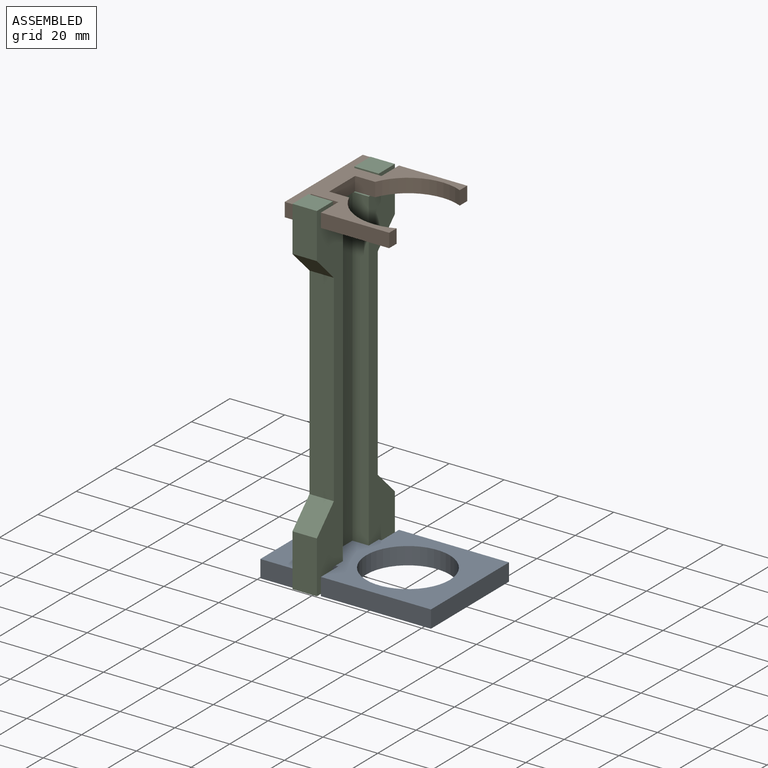
[diagram: assembled view]
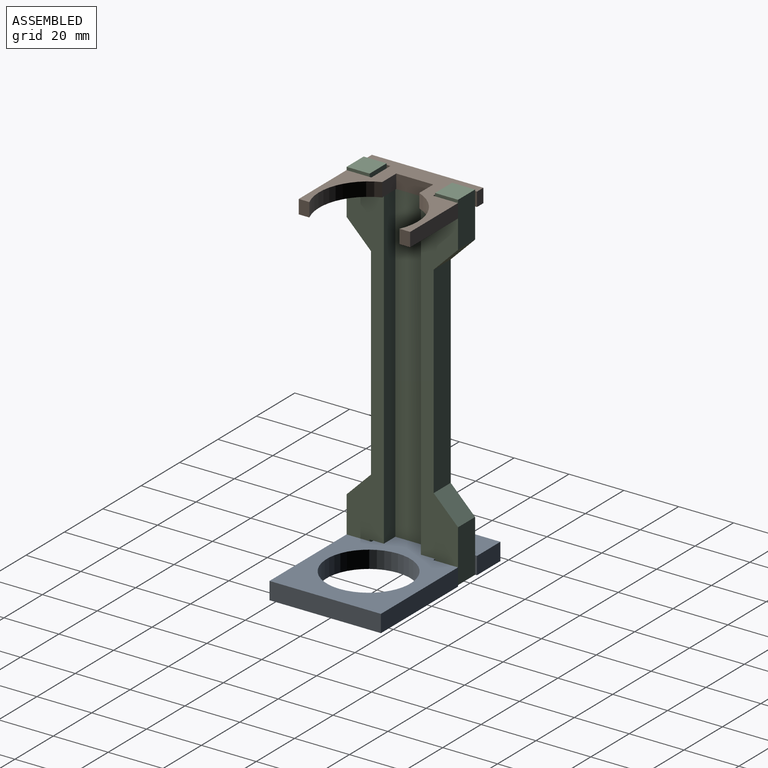
[diagram: assembled view, second angle]
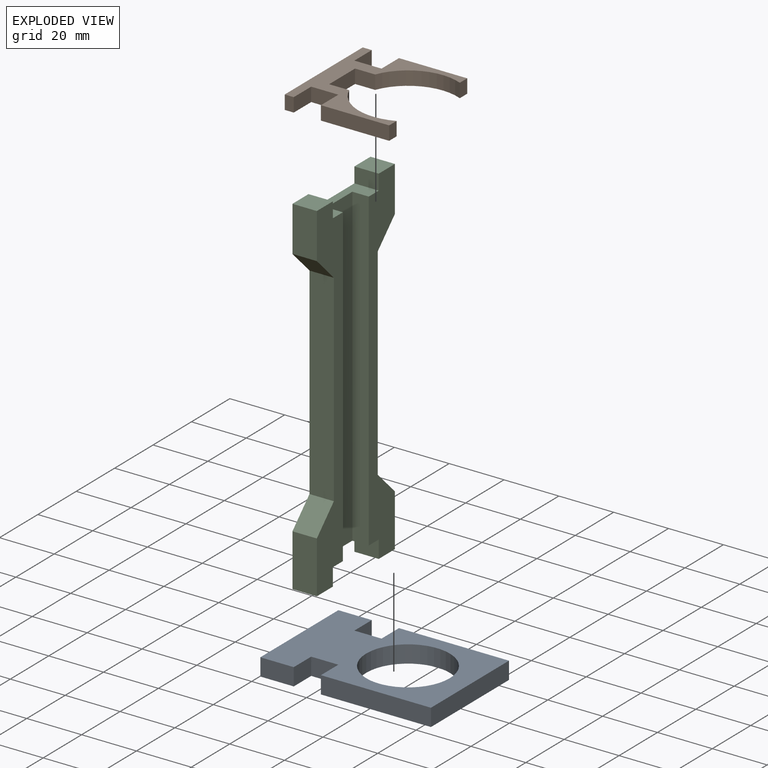
[diagram: exploded view]
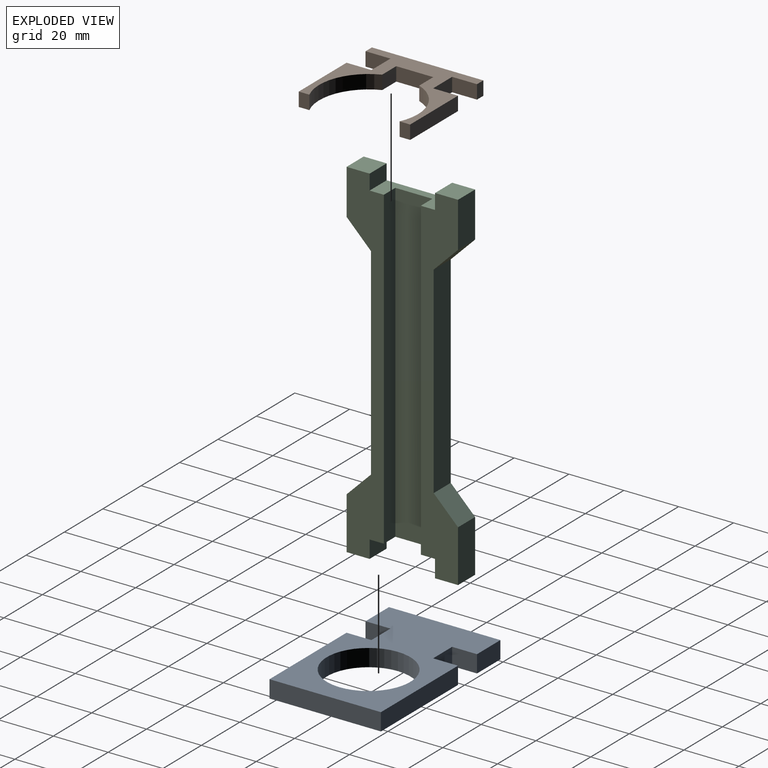
[diagram: exploded view, second angle]
ASSEMBLY  parts=3 mates=2
PART A: 15 faces, bbox 62.2x40.6x6.4 mm
  f0: plane 40.13x6.35mm, normal (0,1,0), area 254.8mm2, adj f1,f11,f13,f14
  f1: plane 9.07x6.35mm, normal (-1,0,0), area 57.6mm2, adj f0,f2,f13,f14
  f2: plane 9.91x6.35mm, normal (0,1,0), area 62.9mm2, adj f1,f3,f13,f14
  f3: plane 9.07x6.35mm, normal (1,0,0), area 57.6mm2, adj f2,f4,f13,f14
  f4: plane 12.19x6.35mm, normal (0,1,0), area 77.4mm2, adj f3,f5,f13,f14
  f5: plane 40.64x6.35mm, normal (-1,0,0), area 258.1mm2, adj f4,f6,f13,f14
  f6: plane 12.19x6.35mm, normal (0,-1,0), area 77.4mm2, adj f5,f7,f13,f14
  f7: plane 9.07x6.35mm, normal (1,0,0), area 57.6mm2, adj f6,f8,f13,f14
  f8: plane 9.91x6.35mm, normal (0,-1,0), area 62.9mm2, adj f7,f9,f13,f14
  f9: plane 9.07x6.35mm, normal (-1,0,0), area 57.6mm2, adj f8,f10,f13,f14
  f10: plane 40.13x6.35mm, normal (0,-1,0), area 254.8mm2, adj f9,f11,f13,f14
  f11: plane 40.64x6.35mm, normal (1,0,0), area 258.1mm2, adj f0,f10,f13,f14
  f12: cylinder r=15.24mm len=30.48mm, axis (0,0,-1), area 608mm2, adj f13,f14
  f13: plane 62.23x40.64mm, normal (0,0,1), area 1619.7mm2, adj f0,f1,f2,f3,f4,f5,f6,f7
  f14: plane 62.23x40.64mm, normal (0,0,-1), area 1619.7mm2, adj f0,f1,f2,f3,f4,f5,f6,f7
PART B: 20 faces, bbox 38.1x40.6x5.1 mm
  f0: plane 7.31x5.08mm, normal (0,1,0), area 37.1mm2, adj f1,f17,f18,f19
  f1: plane 13.5x5.08mm, normal (1,0,0), area 68.6mm2, adj f0,f2,f18,f19
  f2: plane 7.31x5.08mm, normal (0,-1,0), area 37.1mm2, adj f1,f3,f18,f19
  f3: cylinder r=18.03mm len=24.09mm, axis (0,0,-1), area 147.3mm2, adj f2,f4,f18,f19
  f4: plane 5.08x3.86mm, normal (1,0,0), area 19.6mm2, adj f3,f5,f18,f19
  f5: plane 24.89x5.08mm, normal (0,1,0), area 126.5mm2, adj f4,f6,f18,f19
  f6: plane 9.07x5.08mm, normal (-1,0,0), area 46.1mm2, adj f5,f7,f18,f19
  f7: plane 9.91x5.08mm, normal (0,1,0), area 50.3mm2, adj f6,f8,f18,f19
  f8: plane 9.07x5.08mm, normal (1,0,0), area 46.1mm2, adj f7,f9,f18,f19
  f9: plane 5.08x3.3mm, normal (0,1,0), area 16.8mm2, adj f8,f10,f18,f19
  f10: plane 40.64x5.08mm, normal (-1,0,0), area 206.5mm2, adj f9,f11,f18,f19
  f11: plane 5.08x3.3mm, normal (0,-1,0), area 16.8mm2, adj f10,f12,f18,f19
  f12: plane 9.07x5.08mm, normal (1,0,0), area 46.1mm2, adj f11,f13,f18,f19
  f13: plane 9.91x5.08mm, normal (0,-1,0), area 50.3mm2, adj f12,f14,f18,f19
  f14: plane 9.07x5.08mm, normal (-1,0,0), area 46.1mm2, adj f13,f15,f18,f19
  f15: plane 24.89x5.08mm, normal (0,-1,0), area 126.5mm2, adj f14,f16,f18,f19
  f16: plane 5.08x3.86mm, normal (1,0,0), area 19.6mm2, adj f15,f17,f18,f19
  f17: cylinder r=18.03mm len=24.09mm, axis (0,0,-1), area 147.3mm2, adj f0,f16,f18,f19
  f18: plane 40.64x38.1mm, normal (0,0,1), area 513mm2, adj f0,f1,f2,f3,f4,f5,f6,f7
  f19: plane 40.64x38.1mm, normal (0,0,-1), area 513mm2, adj f0,f1,f2,f3,f4,f5,f6,f7
PART C: 26 faces, bbox 8.9x40.6x127 mm
  f0: plane 16.51x8.89mm, normal (0,1,0), area 146.8mm2, adj f4,f8,f12,f19
  f1: plane 16.51x8.89mm, normal (0,-1,0), area 146.8mm2, adj f2,f4,f11,f23
  f2: plane 8.89x8.38mm, normal (0,0,1), area 74.5mm2, adj f1,f4,f11,f22
  f3: plane 8.89x8.38mm, normal (0,0,-1), area 74.5mm2, adj f4,f10,f11,f15
  f4: plane 127x40.64mm, normal (-1,0,0), area 3407.3mm2, adj f0,f1,f2,f3,f9,f10,f12,f13
  f5: plane 115.01x6mm, normal (0,1,0), area 690.1mm2, adj f6,f11,f16,f21
  f6: plane 115.01x13.5mm, normal (1,0,0), area 1552.7mm2, adj f5,f7,f16,f21
  f7: plane 115.01x6mm, normal (0,-1,0), area 690.1mm2, adj f6,f8,f16,f21
  f8: plane 127x13.57mm, normal (1,0,0), area 927.3mm2, adj f0,f7,f9,f12,f13,f14,f16,f17
  f9: plane 19.05x8.89mm, normal (0,1,0), area 169.4mm2, adj f4,f8,f13,f17
  f10: plane 19.05x8.89mm, normal (0,-1,0), area 169.4mm2, adj f3,f4,f11,f25
  f11: plane 127x13.57mm, normal (1,0,0), area 927.3mm2, adj f1,f2,f3,f5,f10,f15,f16,f21
  f12: plane 8.89x8.38mm, normal (0,0,1), area 74.5mm2, adj f0,f4,f8,f20
  f13: plane 8.89x8.38mm, normal (0,0,-1), area 74.5mm2, adj f4,f8,f9,f14
  f14: plane 8.89x6.4mm, normal (0,-1,0), area 56.9mm2, adj f4,f8,f13,f16
  f15: plane 8.89x6.4mm, normal (0,1,0), area 56.9mm2, adj f3,f4,f11,f16
  f16: plane 23.88x8.89mm, normal (0,0,-1), area 131.3mm2, adj f4,f5,f6,f7,f8,f11,f14,f15
  f17: plane 8.89x8.89mm, normal (0,0.71,0.71), area 111.8mm2, adj f4,f8,f9,f18
  f18: plane 73.66x8.89mm, normal (0,1,0), area 654.8mm2, adj f4,f8,f17,f19
  f19: plane 8.89x8.89mm, normal (0,0.71,-0.71), area 111.8mm2, adj f0,f4,f8,f18
  f20: plane 8.89x5.59mm, normal (0,-1,0), area 49.7mm2, adj f4,f8,f12,f21
  f21: plane 23.88x8.89mm, normal (0,0,1), area 131.3mm2, adj f4,f5,f6,f7,f8,f11,f20,f22
  f22: plane 8.89x5.59mm, normal (0,1,0), area 49.7mm2, adj f2,f4,f11,f21
  f23: plane 8.89x8.89mm, normal (0,-0.71,-0.71), area 111.8mm2, adj f1,f4,f11,f24
  f24: plane 73.66x8.89mm, normal (0,-1,0), area 654.8mm2, adj f4,f11,f23,f25
  f25: plane 8.89x8.89mm, normal (0,-0.71,0.71), area 111.8mm2, adj f4,f10,f11,f24
PLACE A t=(-44.42,20.74,-13.3)mm
PLACE B t=(-44.42,20.74,108.06)mm
PLACE C t=(-44.93,20.05,-13.35)mm
MATE fastened C.f21 <-> B.f19  axis (0,0,1) through (-44.93,31.99,108.06)mm
MATE fastened C.f16 <-> A.f13  axis (0,0,-1) through (-44.93,31.99,-6.95)mm
